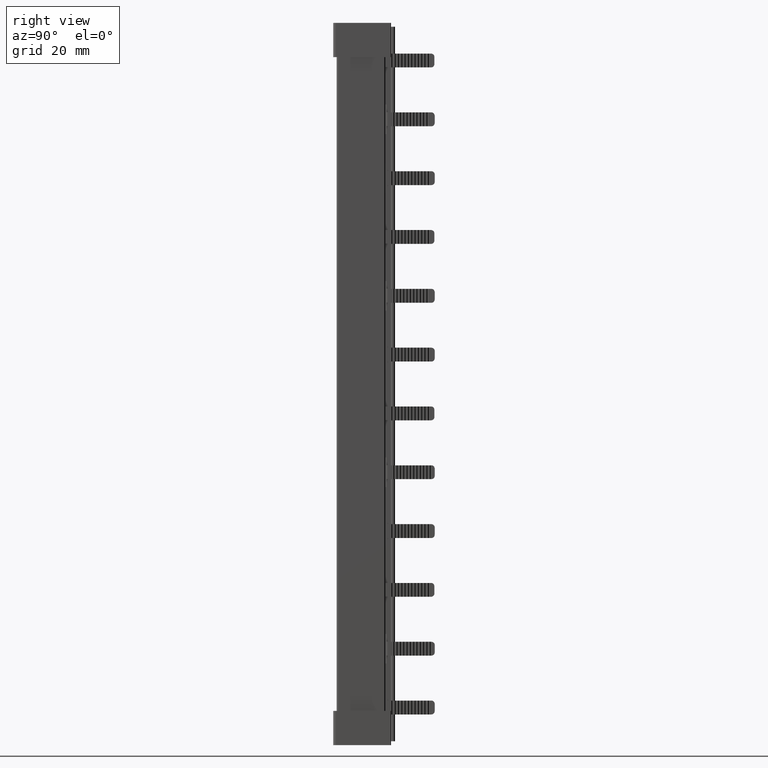
[diagram: clean part render]
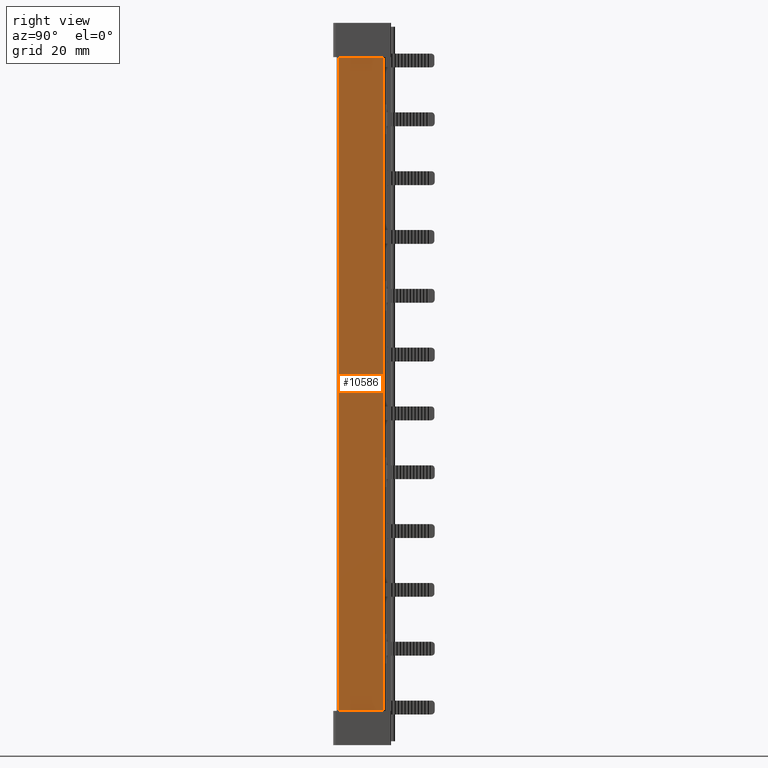
[diagram: same view with one face highlighted and labeled with its STEP entity id]
A machine part, right view. The second image highlights one B-rep face of the part: STEP entity #10586.
In plain terms, the highlighted planar face has unit normal (1, -0, 0).
Its self-contained STEP definition (entity closure, byte-faithful):
#112 = FACE_OUTER_BOUND ( 'NONE', #22119, .T. ) ;
#113 = CARTESIAN_POINT ( 'NONE',  ( 13.67637477970029600, -8.991461328757369000, 219.0000000000000000 ) ) ;
#114 = DIRECTION ( 'NONE',  ( 1.000000000000000000, -0.0000000000000000000, 0.0000000000000000000 ) ) ;
#117 = PLANE ( 'NONE',  #16780 ) ;
#120 = DIRECTION ( 'NONE',  ( 0.0000000000000000000, 0.0000000000000000000, -1.000000000000000000 ) ) ;
#978 = CARTESIAN_POINT ( 'NONE',  ( 13.67637477970029600, 0.4999999999992788000, 10.39999999994820000 ) ) ;
#1000 = CARTESIAN_POINT ( 'NONE',  ( 13.67637477970029600, 0.4999999999992788000, 208.6000000000518100 ) ) ;
#1031 = CARTESIAN_POINT ( 'NONE',  ( 13.67637477970029600, 14.29107189157535600, 208.6000000000518100 ) ) ;
#1053 = CARTESIAN_POINT ( 'NONE',  ( 13.67637477970029600, 14.29107189157535600, 10.39999999994820000 ) ) ;
#5220 = ORIENTED_EDGE ( 'NONE', *, *, #6128, .F. ) ;
#5226 = ORIENTED_EDGE ( 'NONE', *, *, #6013, .T. ) ;
#5239 = ORIENTED_EDGE ( 'NONE', *, *, #6127, .F. ) ;
#5330 = ORIENTED_EDGE ( 'NONE', *, *, #10262, .T. ) ;
#6013 = EDGE_CURVE ( 'NONE', #11796, #11799, #12550, .T. ) ;
#6127 = EDGE_CURVE ( 'NONE', #11796, #11742, #12912, .T. ) ;
#6128 = EDGE_CURVE ( 'NONE', #11729, #11799, #12937, .T. ) ;
#9548 = LINE ( 'NONE', #9549, #16406 ) ;
#9549 = CARTESIAN_POINT ( 'NONE',  ( 13.67637477970029600, 0.4999999999992788000, 219.0000000000000000 ) ) ;
#9550 = DIRECTION ( 'NONE',  ( 0.0000000000000000000, 0.0000000000000000000, -1.000000000000000000 ) ) ;
#10262 = EDGE_CURVE ( 'NONE', #11729, #11742, #9548, .T. ) ;
#10586 = ADVANCED_FACE ( 'NONE', ( #112 ), #117, .T. ) ;
#11729 = VERTEX_POINT ( 'NONE', #1000 ) ;
#11742 = VERTEX_POINT ( 'NONE', #978 ) ;
#11796 = VERTEX_POINT ( 'NONE', #1053 ) ;
#11799 = VERTEX_POINT ( 'NONE', #1031 ) ;
#12550 = LINE ( 'NONE', #12628, #18601 ) ;
#12598 = DIRECTION ( 'NONE',  ( -0.0000000000000000000, -0.0000000000000000000, 1.000000000000000000 ) ) ;
#12628 = CARTESIAN_POINT ( 'NONE',  ( 13.67637477970029600, 14.29107189157535600, 219.0000000000000000 ) ) ;
#12912 = LINE ( 'NONE', #12938, #18723 ) ;
#12937 = LINE ( 'NONE', #12953, #18748 ) ;
#12938 = CARTESIAN_POINT ( 'NONE',  ( 13.67637477970029600, -8.991461328757369000, 10.39999999994820000 ) ) ;
#12953 = CARTESIAN_POINT ( 'NONE',  ( 13.67637477970029600, -8.991461328757369000, 208.6000000000518100 ) ) ;
#12966 = DIRECTION ( 'NONE',  ( 0.0000000000000000000, -1.000000000000000000, 0.0000000000000000000 ) ) ;
#12967 = DIRECTION ( 'NONE',  ( 0.0000000000000000000, 1.000000000000000000, 0.0000000000000000000 ) ) ;
#16406 = VECTOR ( 'NONE', #9550, 1000.000000000000000 ) ;
#16780 = AXIS2_PLACEMENT_3D ( 'NONE', #113, #114, #120 ) ;
#18601 = VECTOR ( 'NONE', #12598, 1000.000000000000000 ) ;
#18723 = VECTOR ( 'NONE', #12966, 1000.000000000000000 ) ;
#18748 = VECTOR ( 'NONE', #12967, 1000.000000000000000 ) ;
#22119 = EDGE_LOOP ( 'NONE', ( #5239, #5226, #5220, #5330 ) ) ;